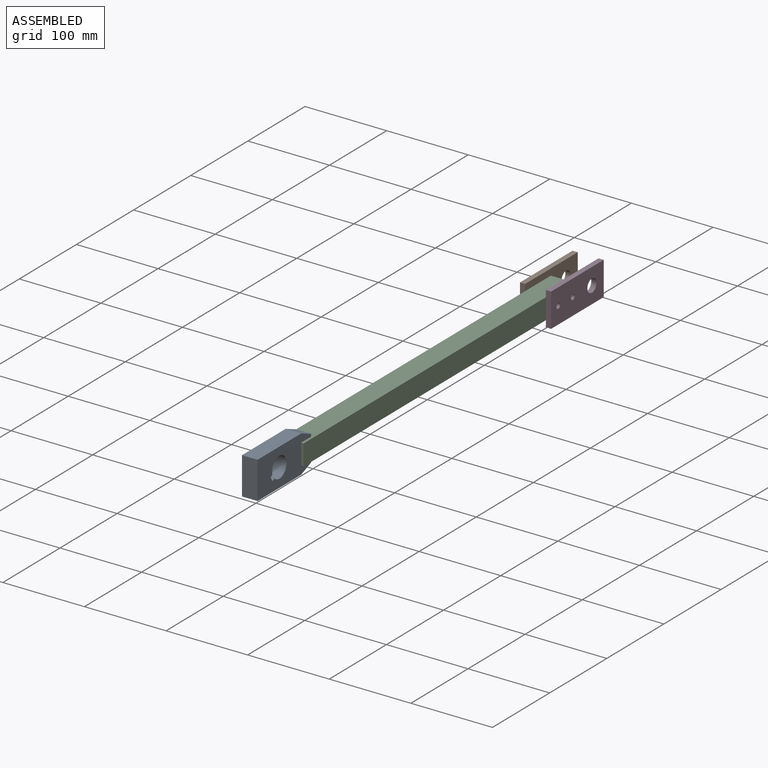
[diagram: assembled view]
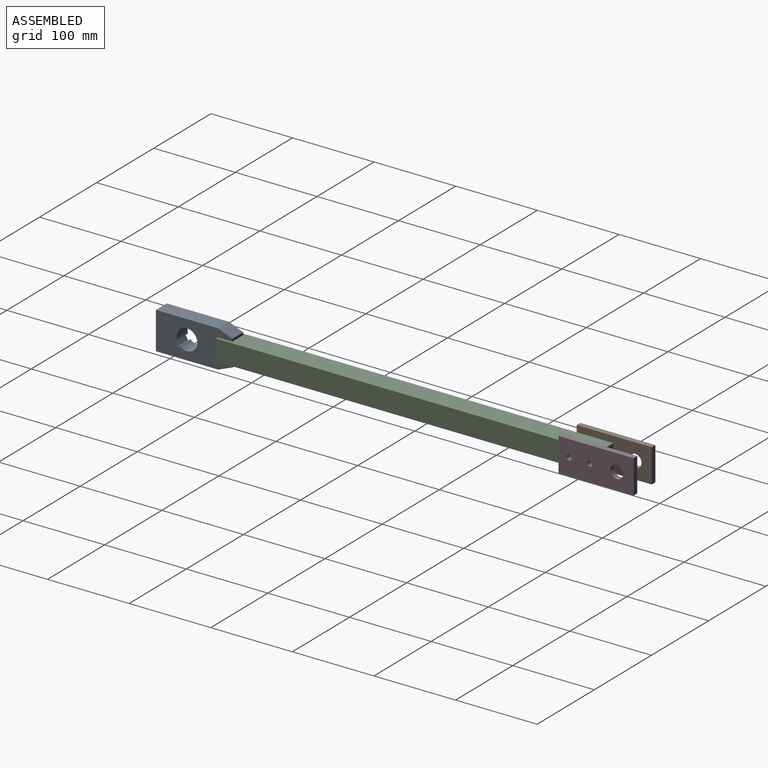
[diagram: assembled view, second angle]
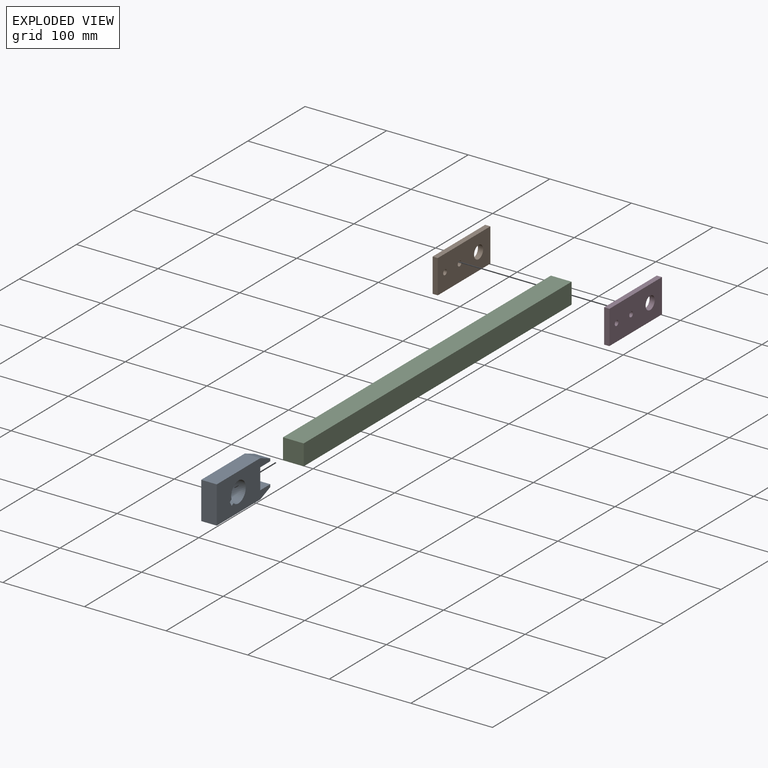
[diagram: exploded view]
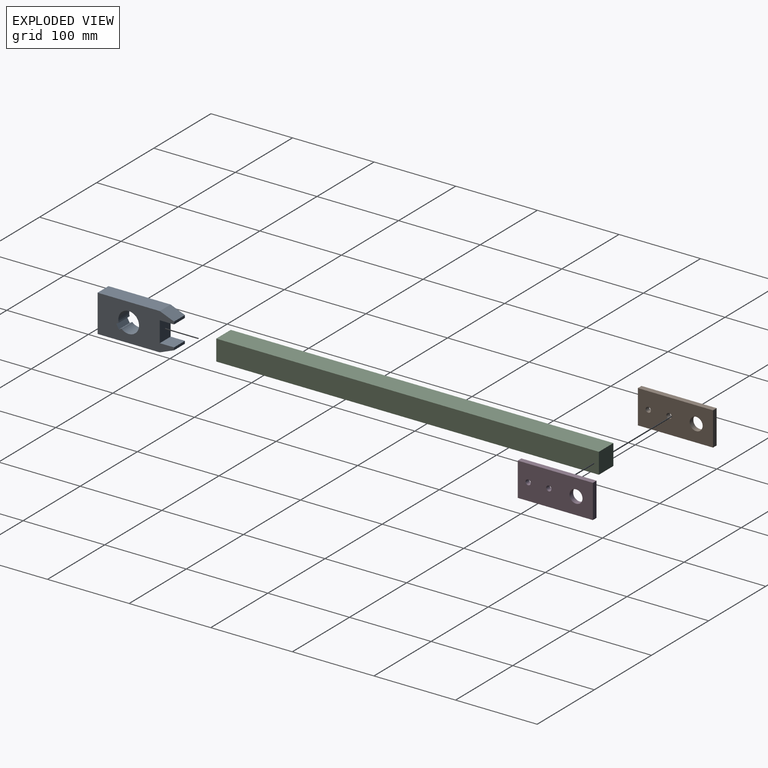
[diagram: exploded view, second angle]
ASSEMBLY  parts=4 mates=3
PART A: 16 faces, bbox 19.1x93.7x45.7 mm
  f0: plane 45.72x19.05mm, normal (0,1,0), area 871mm2, adj f1,f13,f14,f15
  f1: plane 76.2x19.05mm, normal (0,0,1), area 1451.6mm2, adj f0,f2,f14,f15
  f2: plane 19.05x17.46mm, normal (0,-0.37,0.93), area 358.3mm2, adj f1,f3,f14,f15
  f3: plane 19.05x3.18mm, normal (0,-1,0), area 60.5mm2, adj f2,f4,f14,f15
  f4: plane 19.05x17.46mm, normal (0,0,-1), area 332.7mm2, adj f3,f5,f14,f15
  f5: plane 25.4x19.05mm, normal (0,-1,0), area 483.9mm2, adj f4,f6,f14,f15
  f6: plane 19.05x17.46mm, normal (0,0,1), area 332.7mm2, adj f5,f7,f14,f15
  f7: plane 19.05x3.18mm, normal (0,-1,0), area 60.5mm2, adj f6,f8,f14,f15
  f8: plane 19.05x17.46mm, normal (0,-0.37,-0.93), area 358.3mm2, adj f7,f13,f14,f15
  f9: cylinder r=12.7mm len=25.4mm, axis (-1,0,0), area 1397.9mm2, adj f10,f12,f14,f15
  f10: plane 19.05x3.07mm, normal (0,0.51,-0.86), area 68.2mm2, adj f9,f11,f14,f15
  f11: plane 19.05x5.45mm, normal (0,-0.86,-0.51), area 121mm2, adj f10,f12,f14,f15
  f12: plane 19.05x3.07mm, normal (0,-0.51,0.86), area 68.2mm2, adj f9,f11,f14,f15
  f13: plane 76.2x19.05mm, normal (0,0,-1), area 1451.6mm2, adj f0,f8,f14,f15
  f14: plane 93.66x45.72mm, normal (1,0,0), area 3189mm2, adj f0,f1,f2,f3,f4,f5,f6,f7
  f15: plane 93.66x45.72mm, normal (-1,0,0), area 3189mm2, adj f0,f1,f2,f3,f4,f5,f6,f7
PART B: 9 faces, bbox 6.4x41.3x92.1 mm
  f0: plane 92.08x6.35mm, normal (0,-1,0), area 584.7mm2, adj f1,f3,f7,f8
  f1: plane 41.28x6.35mm, normal (0,0,-1), area 262.1mm2, adj f0,f2,f7,f8
  f2: plane 92.08x6.35mm, normal (0,1,0), area 584.7mm2, adj f1,f3,f7,f8
  f3: plane 41.28x6.35mm, normal (0,0,1), area 262.1mm2, adj f0,f2,f7,f8
  f4: cylinder r=3.17mm len=6.35mm, axis (-1,0,0), area 126.7mm2, adj f7,f8
  f5: cylinder r=3.17mm len=6.35mm, axis (-1,0,0), area 126.7mm2, adj f7,f8
  f6: cylinder r=7.94mm len=15.88mm, axis (-1,0,0), area 316.7mm2, adj f7,f8
  f7: plane 92.08x41.28mm, normal (1,0,0), area 3539.1mm2, adj f0,f1,f2,f3,f4,f5,f6
  f8: plane 92.08x41.28mm, normal (-1,0,0), area 3539.1mm2, adj f0,f1,f2,f3,f4,f5,f6
PART C: 6 faces, bbox 25.4x468.8x25.4 mm
  f0: plane 468.85x25.4mm, normal (1,0,0), area 11908.8mm2, adj f1,f3,f4,f5
  f1: plane 468.85x25.4mm, normal (0,0,1), area 11908.8mm2, adj f0,f2,f4,f5
  f2: plane 468.85x25.4mm, normal (-1,0,0), area 11908.8mm2, adj f1,f3,f4,f5
  f3: plane 468.85x25.4mm, normal (0,0,-1), area 11908.8mm2, adj f0,f2,f4,f5
  f4: plane 25.4x25.4mm, normal (0,-1,0), area 645.2mm2, adj f0,f1,f2,f3
  f5: plane 25.4x25.4mm, normal (0,1,0), area 645.2mm2, adj f0,f1,f2,f3
PART D: same geometry as B
PLACE A rot(axis=(1,0,0),180deg) t=(0,-272.52,0)mm
PLACE B rot(axis=(0,-0.71,0.71),180deg) t=(-15.88,240.24,20.64)mm
PLACE C at identity
PLACE D rot(axis=(1,0,0),90deg) t=(15.88,240.24,-20.64)mm
MATE fastened B.f8 <-> C.f2  axis (1,0,0) through (-12.7,234.42,0)mm
MATE fastened A.f5 <-> C.f4  axis (0,1,0) through (0,-234.42,0)mm
MATE fastened D.f8 <-> C.f0  axis (-1,0,0) through (12.7,234.42,0)mm
